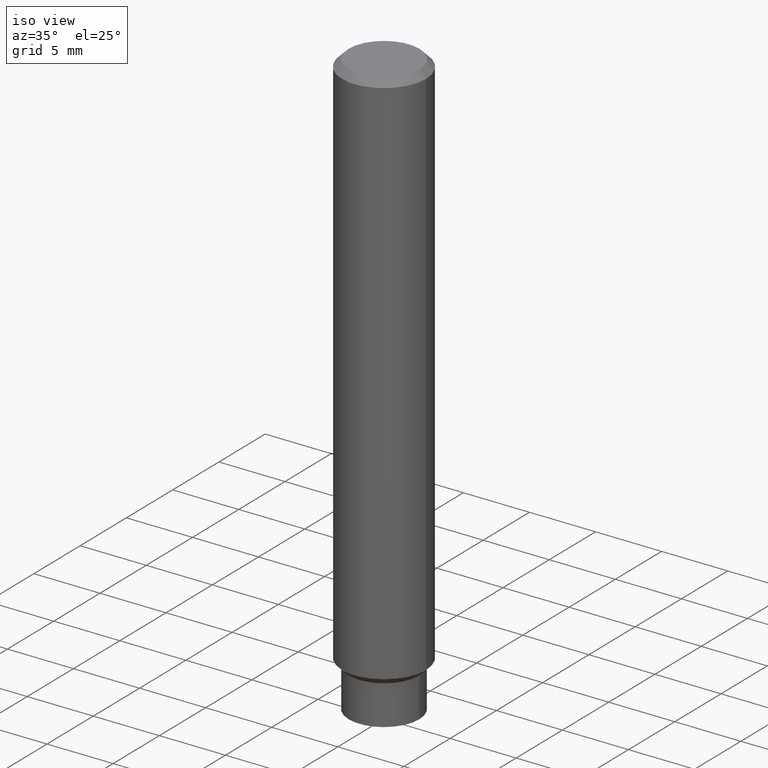
[diagram: clean part render]
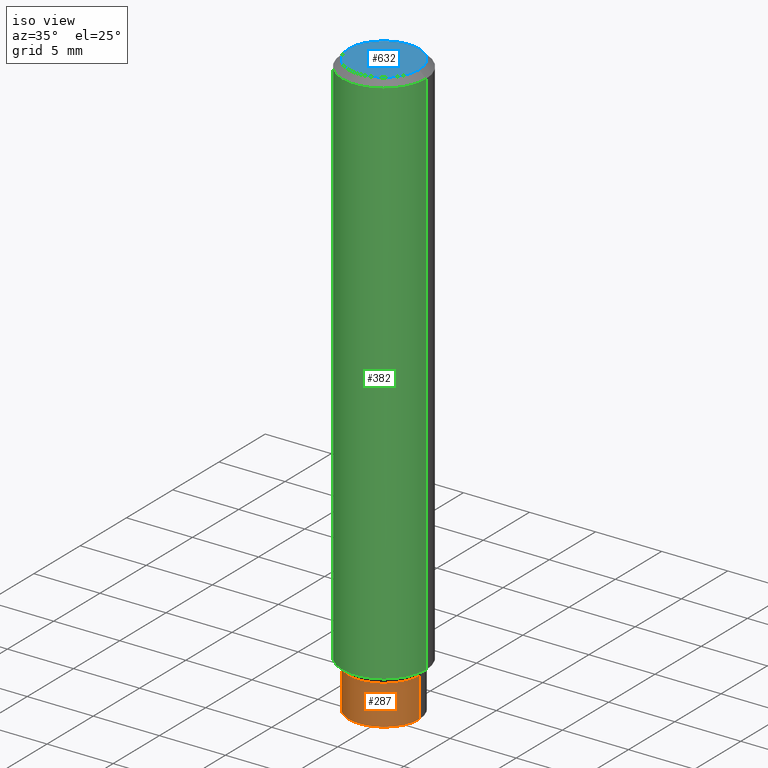
[diagram: same view with three faces highlighted in distinct colors, each labeled with its STEP entity id]
A machine part, iso view with three faces highlighted in distinct colors.
Their STEP definitions:

[orange] entity #287 — the highlighted cylindrical surface (partial cylindrical patch) has radius 2.667 mm, axis along (-0, 0, 1).
#14 = EDGE_CURVE ( 'NONE', #387, #188, #79, .T. ) ;
#37 = FACE_OUTER_BOUND ( 'NONE', #483, .T. ) ;
#38 = CARTESIAN_POINT ( 'NONE',  ( 0.1049999999999999684, -6.431308626149071583E-15, -1.631999999999999895 ) ) ;
#48 = ORIENTED_EDGE ( 'NONE', *, *, #138, .T. ) ;
#49 = DIRECTION ( 'NONE',  ( -2.445468806185136877E-29, 3.491481338843145188E-15, 1.000000000000000000 ) ) ;
#66 = DIRECTION ( 'NONE',  ( -2.445468806185136877E-29, 3.491481338843145188E-15, 1.000000000000000000 ) ) ;
#79 = LINE ( 'NONE', #209, #547 ) ;
#113 = AXIS2_PLACEMENT_3D ( 'NONE', #265, #565, #617 ) ;
#138 = EDGE_CURVE ( 'NONE', #387, #397, #638, .T. ) ;
#159 = EDGE_CURVE ( 'NONE', #188, #434, #273, .T. ) ;
#188 = VERTEX_POINT ( 'NONE', #347 ) ;
#189 = LINE ( 'NONE', #344, #329 ) ;
#206 = DIRECTION ( 'NONE',  ( -2.445468806185136597E-29, 3.491481338843145583E-15, 1.000000000000000000 ) ) ;
#209 = CARTESIAN_POINT ( 'NONE',  ( -0.1049999999999999684, 7.460698725481049703E-16, -5.164881844767649922E-30 ) ) ;
#265 = CARTESIAN_POINT ( 'NONE',  ( 0.000000000000000000, 0.000000000000000000, 0.000000000000000000 ) ) ;
#273 = CIRCLE ( 'NONE', #596, 0.1049999999999999684 ) ;
#287 = ADVANCED_FACE ( 'NONE', ( #37 ), #426, .T. ) ;
#329 = VECTOR ( 'NONE', #49, 39.37007874015748143 ) ;
#344 = CARTESIAN_POINT ( 'NONE',  ( 0.1049999999999999684, -7.332110811570578271E-16, 5.119985614585731321E-30 ) ) ;
#347 = CARTESIAN_POINT ( 'NONE',  ( -0.1049999999999999684, -4.846058585479466463E-15, -1.631999999999999895 ) ) ;
#355 = CARTESIAN_POINT ( 'NONE',  ( 4.279570410823988484E-29, -6.110092342975504671E-15, -1.750000000000000000 ) ) ;
#383 = ORIENTED_EDGE ( 'NONE', *, *, #14, .F. ) ;
#387 = VERTEX_POINT ( 'NONE', #473 ) ;
#397 = VERTEX_POINT ( 'NONE', #528 ) ;
#426 = CYLINDRICAL_SURFACE ( 'NONE', #113, 0.1049999999999999684 ) ;
#434 = VERTEX_POINT ( 'NONE', #38 ) ;
#451 = CARTESIAN_POINT ( 'NONE',  ( 3.991005091694142827E-29, -5.698097544992013263E-15, -1.631999999999999895 ) ) ;
#455 = DIRECTION ( 'NONE',  ( 1.000000000000000000, -6.982962677686269866E-15, 0.000000000000000000 ) ) ;
#457 = ORIENTED_EDGE ( 'NONE', *, *, #159, .F. ) ;
#458 = DIRECTION ( 'NONE',  ( -2.445468806185136597E-29, 3.491481338843145583E-15, 1.000000000000000000 ) ) ;
#473 = CARTESIAN_POINT ( 'NONE',  ( -0.1049999999999999961, -5.158025071435654292E-15, -1.750000000000000000 ) ) ;
#483 = EDGE_LOOP ( 'NONE', ( #383, #48, #588, #457 ) ) ;
#528 = CARTESIAN_POINT ( 'NONE',  ( 0.1049999999999999961, -6.843303424132562202E-15, -1.750000000000000000 ) ) ;
#530 = EDGE_CURVE ( 'NONE', #397, #434, #189, .T. ) ;
#547 = VECTOR ( 'NONE', #66, 39.37007874015748143 ) ;
#555 = DIRECTION ( 'NONE',  ( 1.000000000000000000, -6.982962677686268288E-15, 0.000000000000000000 ) ) ;
#559 = AXIS2_PLACEMENT_3D ( 'NONE', #355, #206, #555 ) ;
#565 = DIRECTION ( 'NONE',  ( -2.445468806185136597E-29, 3.491481338843145583E-15, 1.000000000000000000 ) ) ;
#588 = ORIENTED_EDGE ( 'NONE', *, *, #530, .T. ) ;
#596 = AXIS2_PLACEMENT_3D ( 'NONE', #451, #458, #455 ) ;
#617 = DIRECTION ( 'NONE',  ( 1.000000000000000000, -6.982962677686267499E-15, 4.876176775795935793E-29 ) ) ;
#638 = CIRCLE ( 'NONE', #559, 0.1049999999999999961 ) ;

[blue] entity #632 — the highlighted planar face has unit normal (0, -0, -1).
#45 = ORIENTED_EDGE ( 'NONE', *, *, #467, .T. ) ;
#77 = CARTESIAN_POINT ( 'NONE',  ( 0.000000000000000000, 0.000000000000000000, 0.000000000000000000 ) ) ;
#86 = CIRCLE ( 'NONE', #388, 0.1049999999999999545 ) ;
#97 = VERTEX_POINT ( 'NONE', #160 ) ;
#116 = DIRECTION ( 'NONE',  ( -1.000000000000000000, 6.982962677686265922E-15, -4.876176775795935793E-29 ) ) ;
#139 = EDGE_LOOP ( 'NONE', ( #45, #146 ) ) ;
#146 = ORIENTED_EDGE ( 'NONE', *, *, #266, .T. ) ;
#160 = CARTESIAN_POINT ( 'NONE',  ( -0.1049999999999999545, 7.681258945454889832E-16, -5.249639473182164475E-30 ) ) ;
#162 = PLANE ( 'NONE',  #350 ) ;
#167 = AXIS2_PLACEMENT_3D ( 'NONE', #621, #521, #379 ) ;
#266 = EDGE_CURVE ( 'NONE', #542, #97, #86, .T. ) ;
#268 = DIRECTION ( 'NONE',  ( 1.000000000000000000, -6.982962677686265922E-15, 4.876176775795935793E-29 ) ) ;
#350 = AXIS2_PLACEMENT_3D ( 'NONE', #354, #602, #116 ) ;
#354 = CARTESIAN_POINT ( 'NONE',  ( 7.332110811570576299E-16, 0.1049999999999999545, -3.666055405785300968E-16 ) ) ;
#378 = CIRCLE ( 'NONE', #167, 0.1049999999999999545 ) ;
#379 = DIRECTION ( 'NONE',  ( 1.000000000000000000, -6.982962677686265922E-15, 4.876176775795935793E-29 ) ) ;
#388 = AXIS2_PLACEMENT_3D ( 'NONE', #77, #573, #268 ) ;
#445 = CARTESIAN_POINT ( 'NONE',  ( 0.1049999999999999545, -8.238720831321574672E-16, 5.444276250344148664E-30 ) ) ;
#454 = FACE_OUTER_BOUND ( 'NONE', #139, .T. ) ;
#467 = EDGE_CURVE ( 'NONE', #97, #542, #378, .T. ) ;
#521 = DIRECTION ( 'NONE',  ( -2.445468806185136597E-29, 3.491481338843145583E-15, 1.000000000000000000 ) ) ;
#542 = VERTEX_POINT ( 'NONE', #445 ) ;
#573 = DIRECTION ( 'NONE',  ( -2.445468806185136597E-29, 3.491481338843145583E-15, 1.000000000000000000 ) ) ;
#602 = DIRECTION ( 'NONE',  ( 2.438088387897960049E-29, -3.491481338843145188E-15, -1.000000000000000000 ) ) ;
#621 = CARTESIAN_POINT ( 'NONE',  ( 0.000000000000000000, 0.000000000000000000, 0.000000000000000000 ) ) ;
#632 = ADVANCED_FACE ( 'NONE', ( #454 ), #162, .F. ) ;

[green] entity #382 — the highlighted cylindrical surface (partial cylindrical patch) has radius 3.175 mm, axis along (-0, 0, 1).
#5 = DIRECTION ( 'NONE',  ( -2.445468806185136877E-29, 3.491481338843145188E-15, 1.000000000000000000 ) ) ;
#7 = VECTOR ( 'NONE', #5, 39.37007874015748143 ) ;
#65 = CARTESIAN_POINT ( 'NONE',  ( 0.1250000000000000000, -6.497646771587091085E-15, -1.611000000000000210 ) ) ;
#71 = LINE ( 'NONE', #171, #133 ) ;
#83 = DIRECTION ( 'NONE',  ( -2.445468806185136597E-29, 3.491481338843145583E-15, 1.000000000000000000 ) ) ;
#92 = VERTEX_POINT ( 'NONE', #65 ) ;
#102 = AXIS2_PLACEMENT_3D ( 'NONE', #604, #310, #208 ) ;
#109 = CARTESIAN_POINT ( 'NONE',  ( 0.1250000000000000000, -9.273918764983045463E-16, -0.02000000000000005940 ) ) ;
#120 = CARTESIAN_POINT ( 'NONE',  ( -0.1250000000000000000, 8.881784197001252323E-16, -6.148668862818632227E-30 ) ) ;
#130 = VERTEX_POINT ( 'NONE', #109 ) ;
#133 = VECTOR ( 'NONE', #472, 39.37007874015748143 ) ;
#156 = ORIENTED_EDGE ( 'NONE', *, *, #177, .F. ) ;
#171 = CARTESIAN_POINT ( 'NONE',  ( 0.1250000000000000000, -8.728703347107833388E-16, 6.095220969744919741E-30 ) ) ;
#173 = CYLINDRICAL_SURFACE ( 'NONE', #549, 0.1250000000000000000 ) ;
#177 = EDGE_CURVE ( 'NONE', #356, #627, #562, .T. ) ;
#179 = CARTESIAN_POINT ( 'NONE',  ( 0.000000000000000000, 0.000000000000000000, 0.000000000000000000 ) ) ;
#198 = DIRECTION ( 'NONE',  ( 1.000000000000000000, -6.982962677686270655E-15, 0.000000000000000000 ) ) ;
#205 = ORIENTED_EDGE ( 'NONE', *, *, #536, .T. ) ;
#208 = DIRECTION ( 'NONE',  ( 1.000000000000000000, -6.982962677686266711E-15, 0.000000000000000000 ) ) ;
#241 = DIRECTION ( 'NONE',  ( -2.445468806185136597E-29, 3.491481338843145583E-15, 1.000000000000000000 ) ) ;
#255 = EDGE_CURVE ( 'NONE', #627, #130, #537, .T. ) ;
#310 = DIRECTION ( 'NONE',  ( -2.445468806185136597E-29, 3.491481338843145583E-15, 1.000000000000000000 ) ) ;
#352 = CARTESIAN_POINT ( 'NONE',  ( -0.1250000000000000000, 8.030407079339202378E-16, -0.02000000000000005940 ) ) ;
#356 = VERTEX_POINT ( 'NONE', #624 ) ;
#360 = AXIS2_PLACEMENT_3D ( 'NONE', #381, #241, #198 ) ;
#364 = FACE_OUTER_BOUND ( 'NONE', #509, .T. ) ;
#373 = EDGE_CURVE ( 'NONE', #92, #130, #71, .T. ) ;
#376 = ORIENTED_EDGE ( 'NONE', *, *, #373, .T. ) ;
#381 = CARTESIAN_POINT ( 'NONE',  ( 3.939650246764255255E-29, -5.624776436876307746E-15, -1.611000000000000210 ) ) ;
#382 = ADVANCED_FACE ( 'NONE', ( #364 ), #173, .T. ) ;
#428 = DIRECTION ( 'NONE',  ( 1.000000000000000000, -6.982962677686266711E-15, 4.876176775795935793E-29 ) ) ;
#472 = DIRECTION ( 'NONE',  ( -2.445468806185136877E-29, 3.491481338843145188E-15, 1.000000000000000000 ) ) ;
#509 = EDGE_LOOP ( 'NONE', ( #156, #205, #376, #539 ) ) ;
#516 = CIRCLE ( 'NONE', #360, 0.1250000000000000000 ) ;
#536 = EDGE_CURVE ( 'NONE', #356, #92, #516, .T. ) ;
#537 = CIRCLE ( 'NONE', #102, 0.1250000000000000000 ) ;
#539 = ORIENTED_EDGE ( 'NONE', *, *, #255, .F. ) ;
#549 = AXIS2_PLACEMENT_3D ( 'NONE', #179, #83, #428 ) ;
#562 = LINE ( 'NONE', #120, #7 ) ;
#604 = CARTESIAN_POINT ( 'NONE',  ( 4.890937612370288047E-31, -6.982962677686311331E-17, -0.02000000000000005940 ) ) ;
#624 = CARTESIAN_POINT ( 'NONE',  ( -0.1250000000000000000, -1.959124612126459895E-15, -1.611000000000000210 ) ) ;
#627 = VERTEX_POINT ( 'NONE', #352 ) ;